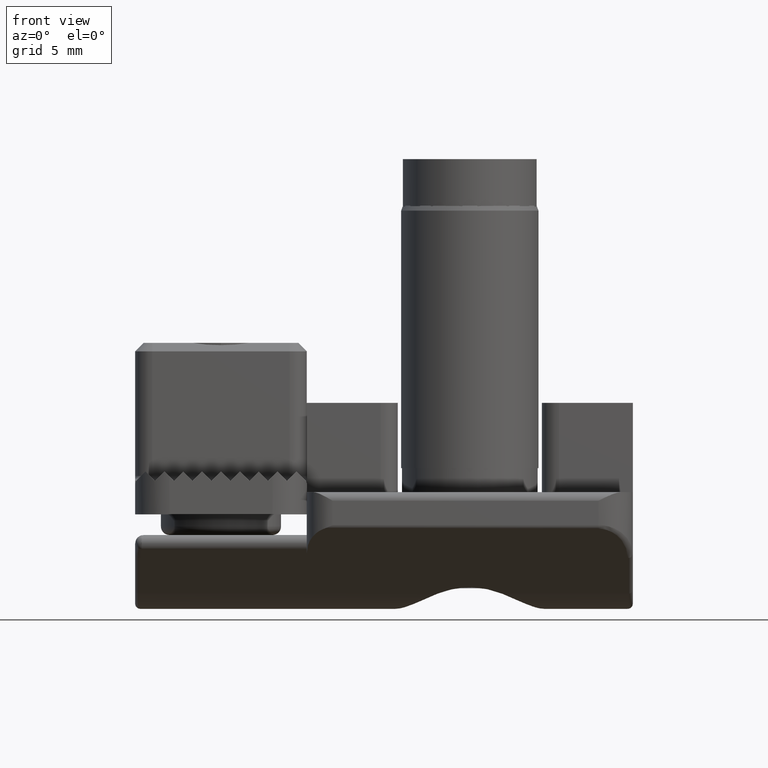
[diagram: clean part render]
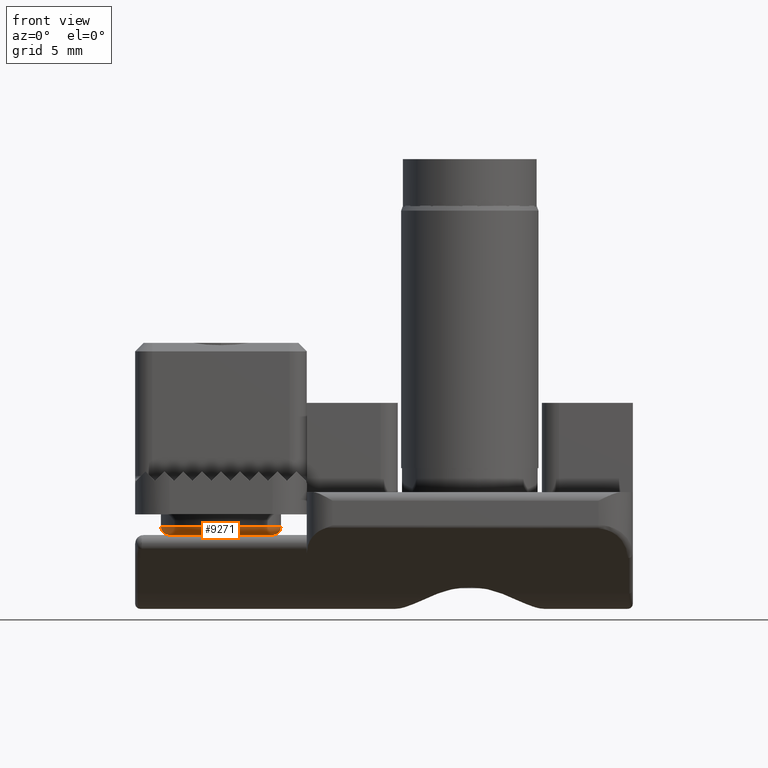
[diagram: same view with one face highlighted and labeled with its STEP entity id]
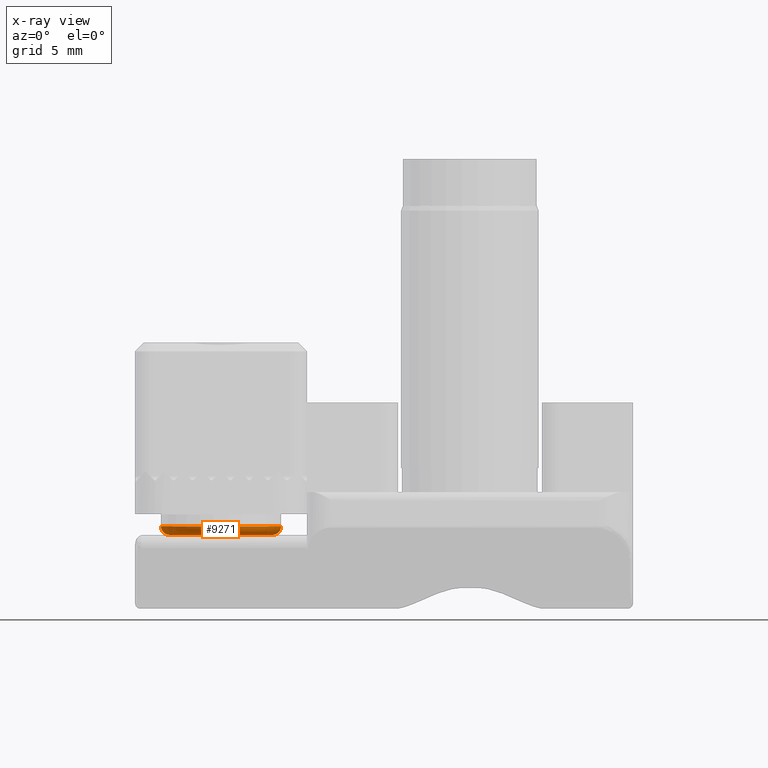
[diagram: x-ray of the same camera — body ghosted, the highlighted face saturated]
A machine part, front view. The second image highlights one B-rep face of the part: STEP entity #9271.
The next image is the same camera in x-ray: the body ghosted, the highlighted face saturated — about 0% of this face is hidden behind the body in this view.
In plain terms, the highlighted toroidal blend (fillet) surface has major radius 3 mm and minor (blend) radius 0.5 mm.
Its self-contained STEP definition (entity closure, byte-faithful):
#8738=CARTESIAN_POINT('',(-3.E0,0.E0,4.5E0));
#8739=DIRECTION('',(0.E0,1.E0,0.E0));
#8740=DIRECTION('',(0.E0,0.E0,-1.E0));
#8741=AXIS2_PLACEMENT_3D('',#8738,#8739,#8740);
#8754=CARTESIAN_POINT('',(3.E0,0.E0,4.5E0));
#8755=DIRECTION('',(0.E0,-1.E0,0.E0));
#8756=DIRECTION('',(0.E0,0.E0,-1.E0));
#8757=AXIS2_PLACEMENT_3D('',#8754,#8755,#8756);
#8776=CARTESIAN_POINT('',(0.E0,0.E0,4.5E0));
#8777=DIRECTION('',(0.E0,0.E0,1.E0));
#8778=DIRECTION('',(-1.E0,0.E0,0.E0));
#8779=AXIS2_PLACEMENT_3D('',#8776,#8777,#8778);
#8784=CARTESIAN_POINT('',(0.E0,0.E0,4.E0));
#8785=DIRECTION('',(0.E0,0.E0,-1.E0));
#8786=DIRECTION('',(1.E0,0.E0,0.E0));
#8787=AXIS2_PLACEMENT_3D('',#8784,#8785,#8786);
#8996=CARTESIAN_POINT('',(3.5E0,0.E0,4.5E0));
#8997=VERTEX_POINT('',#8996);
#8998=CARTESIAN_POINT('',(-3.5E0,0.E0,4.5E0));
#8999=VERTEX_POINT('',#8998);
#9012=CARTESIAN_POINT('',(3.E0,0.E0,4.E0));
#9013=CARTESIAN_POINT('',(-3.E0,0.E0,4.E0));
#9014=VERTEX_POINT('',#9012);
#9015=VERTEX_POINT('',#9013);
#9260=CARTESIAN_POINT('',(0.E0,0.E0,4.5E0));
#9261=DIRECTION('',(0.E0,0.E0,-1.E0));
#9262=DIRECTION('',(1.E0,0.E0,0.E0));
#9263=AXIS2_PLACEMENT_3D('',#9260,#9261,#9262);
#9264=TOROIDAL_SURFACE('',#9263,3.E0,5.E-1);
#9265=ORIENTED_EDGE('',*,*,#9252,.T.);
#9266=ORIENTED_EDGE('',*,*,#9226,.F.);
#9267=ORIENTED_EDGE('',*,*,#9194,.T.);
#9268=ORIENTED_EDGE('',*,*,#9223,.T.);
#9269=EDGE_LOOP('',(#9265,#9266,#9267,#9268));
#9270=FACE_OUTER_BOUND('',#9269,.F.);
#9271=ADVANCED_FACE('',(#9270),#9264,.T.);
#8742=CIRCLE('',#8741,5.E-1);
#8758=CIRCLE('',#8757,5.E-1);
#8780=CIRCLE('',#8779,3.5E0);
#8788=CIRCLE('',#8787,3.E0);
#9194=EDGE_CURVE('',#9014,#9015,#8788,.T.);
#9223=EDGE_CURVE('',#9015,#8999,#8742,.T.);
#9226=EDGE_CURVE('',#9014,#8997,#8758,.T.);
#9252=EDGE_CURVE('',#8999,#8997,#8780,.T.);